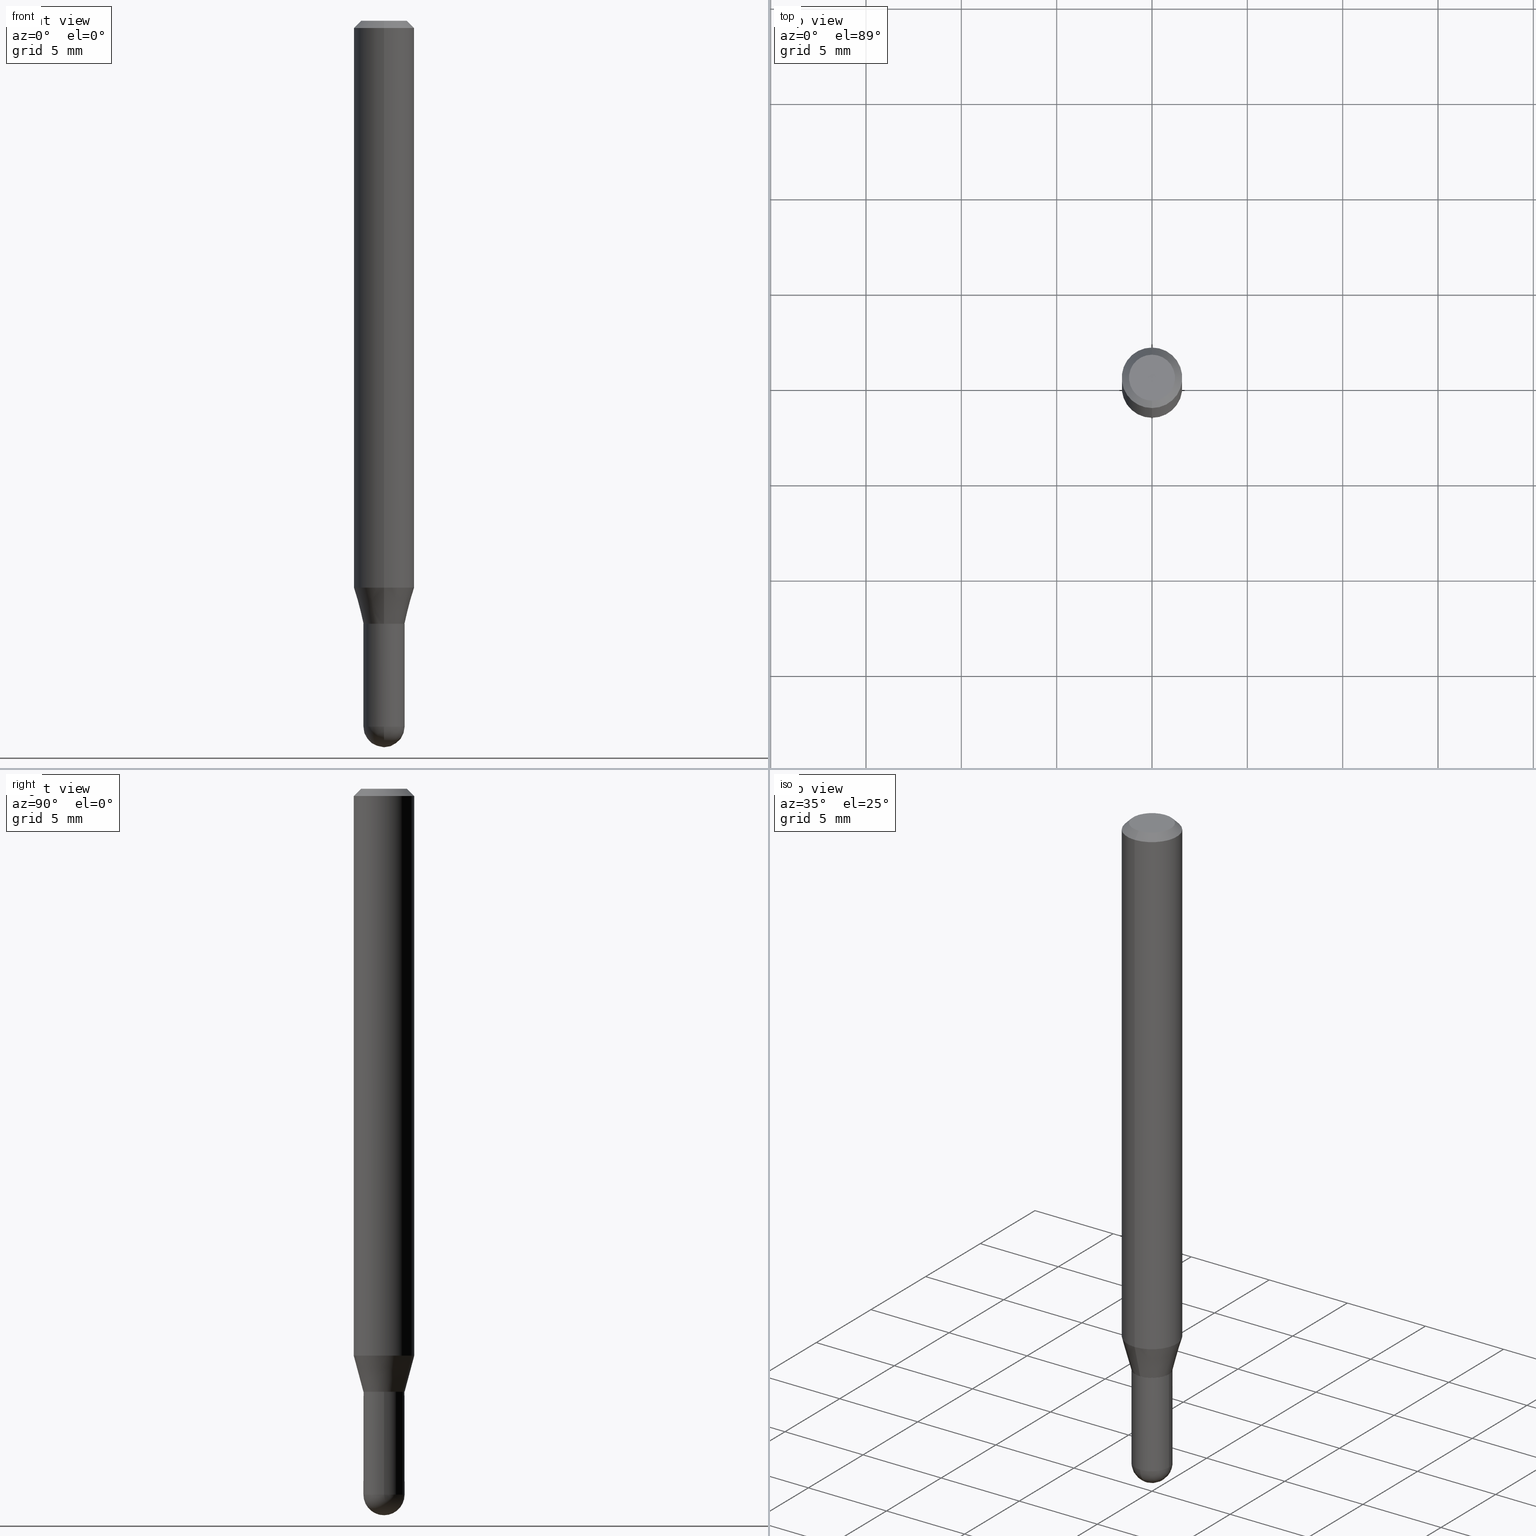
[diagram: canonical four-view strip — front | top / right | iso, engineering-drawing reading convention]
A machine part, canonical four-view strip (front | top / right | iso — engineering-drawing reading convention). The complete STEP part file that produces these views, byte-faithful:
ISO-10303-21;
HEADER;
FILE_DESCRIPTION (( 'STEP AP203' ),
    '1' );
FILE_NAME ('01490.STEP',
    '2024-03-07T21:38:34',
    ( '' ),
    ( '' ),
    'SwSTEP 2.0',
    'SolidWorks 2023',
    '' );
FILE_SCHEMA (( 'CONFIG_CONTROL_DESIGN' ));
ENDSEC;

DATA;
#1 = ORIENTED_EDGE ( 'NONE', *, *, #155, .T. ) ;
#2 = CARTESIAN_POINT ( 'NONE',  ( 2.984279490192724677E-16, 0.04199999999999565192, -1.245000000000000551 ) ) ;
#3 = ORIENTED_EDGE ( 'NONE', *, *, #252, .F. ) ;
#4 = EDGE_CURVE ( 'NONE', #124, #273, #386, .T. ) ;
#5 = DIRECTION ( 'NONE',  ( -2.445559216434552627E-29, 3.491351866220149979E-15, 1.000000000000000000 ) ) ;
#6 = ADVANCED_FACE ( 'NONE', ( #111 ), #74, .F. ) ;
#7 = AXIS2_PLACEMENT_3D ( 'NONE', #50, #5, #61 ) ;
#8 = AXIS2_PLACEMENT_3D ( 'NONE', #58, #95, #172 ) ;
#9 = ORIENTED_EDGE ( 'NONE', *, *, #446, .F. ) ;
#10 = CARTESIAN_POINT ( 'NONE',  ( 2.862182199487982773E-29, -4.086135022407415615E-15, -1.170358983848625023 ) ) ;
#11 = VERTEX_POINT ( 'NONE', #463 ) ;
#12 = CARTESIAN_POINT ( 'NONE',  ( 3.564270785014837509E-29, -5.088834051363884851E-15, -1.457500000000000240 ) ) ;
#13 = ORIENTED_EDGE ( 'NONE', *, *, #159, .F. ) ;
#14 = ORIENTED_EDGE ( 'NONE', *, *, #100, .F. ) ;
#15 = DIRECTION ( 'NONE',  ( -2.445559216434552627E-29, 3.491351866220149979E-15, 1.000000000000000000 ) ) ;
#16 = CALENDAR_DATE ( 2024, 7, 3 ) ;
#17 = DIRECTION ( 'NONE',  ( -2.445468806185136597E-29, 3.491481338843145583E-15, 1.000000000000000000 ) ) ;
#18 = VECTOR ( 'NONE', #268, 39.37007874015748143 ) ;
#19 = VECTOR ( 'NONE', #291, 39.37007874015748143 ) ;
#20 = ORIENTED_EDGE ( 'NONE', *, *, #477, .F. ) ;
#21 = PERSON_AND_ORGANIZATION ( #430, #490 ) ;
#22 = DIRECTION ( 'NONE',  ( -2.445468806185136597E-29, 3.491481338843145583E-15, 1.000000000000000000 ) ) ;
#23 = PERSON_AND_ORGANIZATION ( #430, #490 ) ;
#24 = PRODUCT_DEFINITION_SHAPE ( 'NONE', 'NONE',  #256 ) ;
#25 = CARTESIAN_POINT ( 'NONE',  ( 0.04250000000000000999, -2.967759138016664042E-16, 2.072375129713273202E-30 ) ) ;
#26 = ORIENTED_EDGE ( 'NONE', *, *, #341, .T. ) ;
#27 = DATE_AND_TIME ( #69, #188 ) ;
#28 = CARTESIAN_POINT ( 'NONE',  ( 0.000000000000000000, 0.000000000000000000, 0.000000000000000000 ) ) ;
#29 = DIRECTION ( 'NONE',  ( -6.982962677686266711E-15, -1.000000000000000000, 6.427877632151220009E-15 ) ) ;
#30 = CIRCLE ( 'NONE', #449, 0.04250000000000000999 ) ;
#31 = PERSON_AND_ORGANIZATION_ROLE ( 'creator' ) ;
#32 = CARTESIAN_POINT ( 'NONE',  ( 4.364351673553919652E-16, 0.06249999999999995143, -0.01500000000000022669 ) ) ;
#33 = EDGE_CURVE ( 'NONE', #298, #42, #230, .T. ) ;
#34 = CARTESIAN_POINT ( 'NONE',  ( 0.000000000000000000, 0.000000000000000000, 0.000000000000000000 ) ) ;
#35 = CONICAL_SURFACE ( 'NONE', #320, 0.04199999999999999567, 0.7853981633974739252 ) ;
#36 = CALENDAR_DATE ( 2024, 7, 3 ) ;
#37 = LOCAL_TIME ( 16, 38, 34.00000000000000000, #484 ) ;
#38 = APPROVAL ( #333, 'UNSPECIFIED' ) ;
#39 = VERTEX_POINT ( 'NONE', #385 ) ;
#40 = CARTESIAN_POINT ( 'NONE',  ( 3.044721224461018478E-29, -4.346733073444087600E-15, -1.245000000000000329 ) ) ;
#41 = DIMENSIONAL_EXPONENTS ( 1.000000000000000000, 0.000000000000000000, 0.000000000000000000, 0.000000000000000000, 0.000000000000000000, 0.000000000000000000, 0.000000000000000000 ) ;
#42 = VERTEX_POINT ( 'NONE', #271 ) ;
#43 = CIRCLE ( 'NONE', #228, 0.04250000000000000999 ) ;
#44 = DIRECTION ( 'NONE',  ( -2.445468806185136597E-29, 3.491481338843145583E-15, 1.000000000000000000 ) ) ;
#45 = CIRCLE ( 'NONE', #472, 0.04250000000000009326 ) ;
#46 = ORIENTED_EDGE ( 'NONE', *, *, #242, .F. ) ;
#47 = PERSON_AND_ORGANIZATION_ROLE ( 'design_owner' ) ;
#48 = DIRECTION ( 'NONE',  ( 1.000000000000000000, -6.982962677686273810E-15, 0.000000000000000000 ) ) ;
#49 = EDGE_LOOP ( 'NONE', ( #53, #158 ) ) ;
#50 = CARTESIAN_POINT ( 'NONE',  ( 3.043498444852801766E-29, -4.344987397510978283E-15, -1.244500000000000384 ) ) ;
#51 = ADVANCED_FACE ( 'NONE', ( #348 ), #311, .T. ) ;
#52 = COORDINATED_UNIVERSAL_TIME_OFFSET ( 5, 0, .BEHIND. ) ;
#53 = ORIENTED_EDGE ( 'NONE', *, *, #316, .T. ) ;
#54 = CARTESIAN_POINT ( 'NONE',  ( 3.564270785014837509E-29, -5.088834051363884851E-15, -1.457500000000000240 ) ) ;
#55 = APPROVAL_PERSON_ORGANIZATION ( #226, #91, #461 ) ;
#56 = DIRECTION ( 'NONE',  ( -2.445559216434552627E-29, 3.491351866220149979E-15, 1.000000000000000000 ) ) ;
#57 = EDGE_LOOP ( 'NONE', ( #9, #339 ) ) ;
#58 = CARTESIAN_POINT ( 'NONE',  ( 3.044721224461019599E-29, -4.346733073444088389E-15, -1.245000000000000551 ) ) ;
#59 = DIRECTION ( 'NONE',  ( 1.000000000000000000, 0.000000000000000000, 0.000000000000000000 ) ) ;
#60 = CARTESIAN_POINT ( 'NONE',  ( 0.000000000000000000, 0.000000000000000000, 0.000000000000000000 ) ) ;
#61 = DIRECTION ( 'NONE',  ( -6.982962677686266711E-15, -1.000000000000000000, 6.427877632151220009E-15 ) ) ;
#62 = DIRECTION ( 'NONE',  ( -2.445559216434552627E-29, 3.491351866220149979E-15, 1.000000000000000000 ) ) ;
#63 = CIRCLE ( 'NONE', #345, 0.04199999999999999567 ) ;
#64 = APPROVAL_DATE_TIME ( #27, #144 ) ;
#65 = ADVANCED_FACE ( 'NONE', ( #429 ), #67, .T. ) ;
#66 = DIRECTION ( 'NONE',  ( -2.445559216434552627E-29, 3.491351866220149979E-15, 1.000000000000000000 ) ) ;
#67 = CONICAL_SURFACE ( 'NONE', #441, 0.06250000000000000000, 0.7853981633974483900 ) ;
#68 = AXIS2_PLACEMENT_3D ( 'NONE', #418, #66, #113 ) ;
#69 = CALENDAR_DATE ( 2024, 7, 3 ) ;
#70 = ADVANCED_FACE ( 'NONE', ( #112 ), #173, .T. ) ;
#71 = CARTESIAN_POINT ( 'NONE',  ( -2.967759138016352935E-16, -0.04250000000000427047, -1.245000000000000329 ) ) ;
#72 = DIRECTION ( 'NONE',  ( -2.445559216434552627E-29, 3.491351866220149979E-15, 1.000000000000000000 ) ) ;
#73 = ADVANCED_FACE ( 'NONE', ( #500 ), #120, .T. ) ;
#74 = PLANE ( 'NONE',  #383 ) ;
#75 = DIRECTION ( 'NONE',  ( -2.445559216434552627E-29, 3.491351866220149979E-15, 1.000000000000000000 ) ) ;
#76 = CIRCLE ( 'NONE', #196, 0.04749999999999999362 ) ;
#77 = CARTESIAN_POINT ( 'NONE',  ( 3.043498444852801766E-29, -4.344987397510978283E-15, -1.244500000000000384 ) ) ;
#78 = DIRECTION ( 'NONE',  ( 1.000000000000000000, -6.982962677686265922E-15, 4.883557194083112901E-29 ) ) ;
#79 = VERTEX_POINT ( 'NONE', #347 ) ;
#80 = CARTESIAN_POINT ( 'NONE',  ( -4.287811248607203282E-16, -0.06250000000000005551, -0.01499999999999979128 ) ) ;
#81 = AXIS2_PLACEMENT_3D ( 'NONE', #407, #212, #444 ) ;
#82 = EDGE_CURVE ( 'NONE', #250, #352, #307, .T. ) ;
#83 = ORIENTED_EDGE ( 'NONE', *, *, #341, .F. ) ;
#84 = EDGE_CURVE ( 'NONE', #478, #42, #183, .T. ) ;
#85 = EDGE_LOOP ( 'NONE', ( #241, #114, #171, #464 ) ) ;
#86 = CARTESIAN_POINT ( 'NONE',  ( 3.560636328285825248E-29, -5.094038800260261442E-15, -1.457500000000000240 ) ) ;
#87 = FACE_OUTER_BOUND ( 'NONE', #469, .T. ) ;
#88 = ORIENTED_EDGE ( 'NONE', *, *, #159, .T. ) ;
#89 = CARTESIAN_POINT ( 'NONE',  ( 4.440892098500625669E-16, 0.06250000000000000000, -2.182094916387593737E-16 ) ) ;
#90 = ORIENTED_EDGE ( 'NONE', *, *, #475, .F. ) ;
#91 = APPROVAL ( #110, 'UNSPECIFIED' ) ;
#92 = DIRECTION ( 'NONE',  ( 1.000000000000000000, -6.982962677686273810E-15, 0.000000000000000000 ) ) ;
#93 = EDGE_CURVE ( 'NONE', #39, #281, #505, .T. ) ;
#94 = CIRCLE ( 'NONE', #489, 0.06250000000000000000 ) ;
#95 = DIRECTION ( 'NONE',  ( -2.445559216434552627E-29, 3.491351866220149979E-15, 1.000000000000000000 ) ) ;
#96 = VERTEX_POINT ( 'NONE', #317 ) ;
#97 = DIRECTION ( 'NONE',  ( -2.445559216434552627E-29, 3.491351866220149979E-15, 1.000000000000000000 ) ) ;
#98 = CYLINDRICAL_SURFACE ( 'NONE', #362, 0.06250000000000000000 ) ;
#99 = DIRECTION ( 'NONE',  ( 7.105427357601001070E-15, 1.000000000000000000, 0.000000000000000000 ) ) ;
#100 = EDGE_CURVE ( 'NONE', #124, #250, #425, .T. ) ;
#101 = EDGE_CURVE ( 'NONE', #298, #396, #43, .T. ) ;
#102 = AXIS2_PLACEMENT_3D ( 'NONE', #397, #62, #465 ) ;
#103 = AXIS2_PLACEMENT_3D ( 'NONE', #458, #294, #29 ) ;
#104 = PERSON_AND_ORGANIZATION_ROLE ( 'classification_officer' ) ;
#105 = DIRECTION ( 'NONE',  ( -6.982962677686265922E-15, -1.000000000000000000, 3.483106191921935554E-15 ) ) ;
#106 = FACE_OUTER_BOUND ( 'NONE', #121, .T. ) ;
#107 = DIRECTION ( 'NONE',  ( -2.445468806185136877E-29, 3.491481338843145188E-15, 1.000000000000000000 ) ) ;
#108 = CYLINDRICAL_SURFACE ( 'NONE', #394, 0.04250000000000000999 ) ;
#109 = CIRCLE ( 'NONE', #68, 0.04199999999999999567 ) ;
#110 = APPROVAL_STATUS ( 'not_yet_approved' ) ;
#111 = FACE_OUTER_BOUND ( 'NONE', #57, .T. ) ;
#112 = FACE_OUTER_BOUND ( 'NONE', #416, .T. ) ;
#113 = DIRECTION ( 'NONE',  ( -6.982962677686265922E-15, -1.000000000000000000, 6.504399984914913214E-15 ) ) ;
#114 = ORIENTED_EDGE ( 'NONE', *, *, #93, .T. ) ;
#115 = FACE_OUTER_BOUND ( 'NONE', #213, .T. ) ;
#116 = DATE_AND_TIME ( #36, #337 ) ;
#117 = DIRECTION ( 'NONE',  ( -2.445468806185136597E-29, 3.491481338843145583E-15, 1.000000000000000000 ) ) ;
#118 = AXIS2_PLACEMENT_3D ( 'NONE', #34, #117, #187 ) ;
#119 = CC_DESIGN_APPROVAL ( #91, ( #428 ) ) ;
#120 = SPHERICAL_SURFACE ( 'NONE', #470, 0.04250000000000009326 ) ;
#121 = EDGE_LOOP ( 'NONE', ( #314, #509, #132, #381 ) ) ;
#122 = CARTESIAN_POINT ( 'NONE',  ( 2.168347630426420581E-46, -3.095596498023266248E-32, -8.866469541423388147E-18 ) ) ;
#123 = DIRECTION ( 'NONE',  ( -1.807323732225379049E-15, -0.2588190451025252359, 0.9659258262890670910 ) ) ;
#124 = VERTEX_POINT ( 'NONE', #198 ) ;
#125 = FACE_OUTER_BOUND ( 'NONE', #459, .T. ) ;
#126 = ORIENTED_EDGE ( 'NONE', *, *, #216, .F. ) ;
#127 = AXIS2_PLACEMENT_3D ( 'NONE', #445, #253, #331 ) ;
#128 = PRODUCT_DEFINITION_FORMATION_WITH_SPECIFIED_SOURCE ( 'ANY', '', #367, .NOT_KNOWN. ) ;
#129 = APPROVAL_ROLE ( '' ) ;
#130 = DIRECTION ( 'NONE',  ( 6.982962677686265922E-15, 1.000000000000000000, -3.491351866220149979E-15 ) ) ;
#131 = EDGE_LOOP ( 'NONE', ( #443, #14, #436, #284 ) ) ;
#132 = ORIENTED_EDGE ( 'NONE', *, *, #225, .T. ) ;
#133 = CARTESIAN_POINT ( 'NONE',  ( 3.044721224461018478E-29, -4.346733073444087600E-15, -1.245000000000000329 ) ) ;
#134 = ORIENTED_EDGE ( 'NONE', *, *, #346, .T. ) ;
#135 = ORIENTED_EDGE ( 'NONE', *, *, #101, .F. ) ;
#136 = DIRECTION ( 'NONE',  ( -2.445559216434552627E-29, 3.491351866220149979E-15, 1.000000000000000000 ) ) ;
#137 = ORIENTED_EDGE ( 'NONE', *, *, #100, .T. ) ;
#138 = MECHANICAL_CONTEXT ( 'NONE', #151, 'mechanical' ) ;
#139 = AXIS2_PLACEMENT_3D ( 'NONE', #150, #267, #424 ) ;
#140 = ORIENTED_EDGE ( 'NONE', *, *, #194, .T. ) ;
#141 = FACE_OUTER_BOUND ( 'NONE', #195, .T. ) ;
#142 = CARTESIAN_POINT ( 'NONE',  ( -4.364351673553628267E-16, -0.06250000000000405231, -1.170358983848624801 ) ) ;
#143 = ORIENTED_EDGE ( 'NONE', *, *, #4, .F. ) ;
#144 = APPROVAL ( #162, 'UNSPECIFIED' ) ;
#145 = EDGE_CURVE ( 'NONE', #124, #434, #243, .T. ) ;
#146 = DIRECTION ( 'NONE',  ( -6.982962677686265922E-15, -1.000000000000000000, 6.427877632151193188E-15 ) ) ;
#147 = CARTESIAN_POINT ( 'NONE',  ( -4.364351673553916201E-16, -0.06250000000000000000, 2.182094916387593737E-16 ) ) ;
#148 = CC_DESIGN_APPROVAL ( #144, ( #256 ) ) ;
#149 = DIRECTION ( 'NONE',  ( -2.445559216434552627E-29, 3.491351866220149979E-15, 1.000000000000000000 ) ) ;
#150 = CARTESIAN_POINT ( 'NONE',  ( 3.668338824651831148E-31, -5.237027799330228519E-17, -0.01500000000000000812 ) ) ;
#151 = APPLICATION_CONTEXT ( 'configuration controlled 3d designs of mechanical parts and assemblies' ) ;
#152 = CIRCLE ( 'NONE', #432, 0.04249999999999991979 ) ;
#153 = VERTEX_POINT ( 'NONE', #353 ) ;
#154 = CC_DESIGN_DATE_AND_TIME_ASSIGNMENT ( #185, #391, ( #428 ) ) ;
#155 = EDGE_CURVE ( 'NONE', #153, #273, #94, .T. ) ;
#156 = CARTESIAN_POINT ( 'NONE',  ( 3.560636328285825248E-29, -5.094038800260261442E-15, -1.457500000000000240 ) ) ;
#157 = ADVANCED_FACE ( 'NONE', ( #87 ), #358, .F. ) ;
#158 = ORIENTED_EDGE ( 'NONE', *, *, #318, .T. ) ;
#159 = EDGE_CURVE ( 'NONE', #96, #298, #344, .T. ) ;
#160 = EDGE_LOOP ( 'NONE', ( #499, #457, #168, #20 ) ) ;
#161 = CARTESIAN_POINT ( 'NONE',  ( -0.04250000000000000999, -4.415883496413759874E-15, -1.457500000000000240 ) ) ;
#162 = APPROVAL_STATUS ( 'not_yet_approved' ) ;
#163 = CARTESIAN_POINT ( 'NONE',  ( 0.04249999999999999611, -4.643670180661383298E-15, -1.245000000000000329 ) ) ;
#164 = ORIENTED_EDGE ( 'NONE', *, *, #395, .T. ) ;
#165 = VECTOR ( 'NONE', #390, 39.37007874015748143 ) ;
#166 = VECTOR ( 'NONE', #107, 39.37007874015748143 ) ;
#167 = CARTESIAN_POINT ( 'NONE',  ( 0.000000000000000000, 0.000000000000000000, 0.000000000000000000 ) ) ;
#168 = ORIENTED_EDGE ( 'NONE', *, *, #395, .F. ) ;
#169 = FACE_OUTER_BOUND ( 'NONE', #49, .T. ) ;
#170 = ORIENTED_EDGE ( 'NONE', *, *, #452, .T. ) ;
#171 = ORIENTED_EDGE ( 'NONE', *, *, #302, .T. ) ;
#172 = DIRECTION ( 'NONE',  ( -6.982962677686266711E-15, -1.000000000000000000, 6.427877632151220009E-15 ) ) ;
#173 = CONICAL_SURFACE ( 'NONE', #360, 0.04199999999999999567, 0.7853981633974739252 ) ;
#174 = AXIS2_PLACEMENT_3D ( 'NONE', #201, #17, #48 ) ;
#175 = CARTESIAN_POINT ( 'NONE',  ( 3.002043058586724733E-16, 0.04199999999999565192, -1.245000000000000551 ) ) ;
#176 = APPLICATION_CONTEXT ( 'configuration controlled 3d designs of mechanical parts and assemblies' ) ;
#177 = CARTESIAN_POINT ( 'NONE',  ( 3.840629472727447874E-16, 0.04749999999999999362, -1.747056831868805136E-16 ) ) ;
#178 = ORIENTED_EDGE ( 'NONE', *, *, #446, .T. ) ;
#179 = DIRECTION ( 'NONE',  ( 1.000000000000000000, -6.982962677686266711E-15, 4.876176775795935793E-29 ) ) ;
#180 = LENGTH_MEASURE_WITH_UNIT ( LENGTH_MEASURE( 0.02539999999999999897 ), #375 );
#181 = LINE ( 'NONE', #147, #277 ) ;
#182 = CC_DESIGN_PERSON_AND_ORGANIZATION_ASSIGNMENT ( #23, #104, ( #428 ) ) ;
#183 = CIRCLE ( 'NONE', #206, 0.04249999999999999611 ) ;
#184 = DIRECTION ( 'NONE',  ( 4.937700262164548042E-15, 0.7071067811865451302, -0.7071067811865499042 ) ) ;
#185 = DATE_AND_TIME ( #420, #209 ) ;
#186 = DIRECTION ( 'NONE',  ( 1.000000000000000000, -6.982962677686265922E-15, 4.883557194083112901E-29 ) ) ;
#187 = DIRECTION ( 'NONE',  ( 1.000000000000000000, -6.982962677686266711E-15, 4.876176775795935793E-29 ) ) ;
#188 = LOCAL_TIME ( 16, 38, 34.00000000000000000, #52 ) ;
#189 = DIRECTION ( 'NONE',  ( -6.982962677686265922E-15, -1.000000000000000000, 6.427877632151193188E-15 ) ) ;
#190 = DIRECTION ( 'NONE',  ( -2.445559216434552627E-29, 3.491351866220149979E-15, 1.000000000000000000 ) ) ;
#191 = CARTESIAN_POINT ( 'NONE',  ( 3.044608663700495534E-29, -4.346894266859716647E-15, -1.245000000000000329 ) ) ;
#192 = APPROVAL_DATE_TIME ( #116, #91 ) ;
#193 = DIRECTION ( 'NONE',  ( 6.982962677686265922E-15, 1.000000000000000000, -3.483106191921935554E-15 ) ) ;
#194 = EDGE_CURVE ( 'NONE', #245, #312, #366, .T. ) ;
#195 = EDGE_LOOP ( 'NONE', ( #90, #1, #26, #406 ) ) ;
#196 = AXIS2_PLACEMENT_3D ( 'NONE', #197, #507, #467 ) ;
#197 = CARTESIAN_POINT ( 'NONE',  ( 2.168347630426420581E-46, -3.095596498023266248E-32, -8.866469541423388147E-18 ) ) ;
#198 = CARTESIAN_POINT ( 'NONE',  ( -2.967759138016352935E-16, -0.04250000000000427047, -1.245000000000000329 ) ) ;
#199 = ORIENTED_EDGE ( 'NONE', *, *, #302, .F. ) ;
#200 = FACE_OUTER_BOUND ( 'NONE', #506, .T. ) ;
#201 = CARTESIAN_POINT ( 'NONE',  ( 3.564270785014837509E-29, -5.088834051363884851E-15, -1.457500000000000240 ) ) ;
#202 = ORIENTED_EDGE ( 'NONE', *, *, #33, .F. ) ;
#203 = DIRECTION ( 'NONE',  ( -2.445559216434552627E-29, 3.491351866220149979E-15, 1.000000000000000000 ) ) ;
#204 = PERSON_AND_ORGANIZATION ( #430, #490 ) ;
#205 = ORIENTED_EDGE ( 'NONE', *, *, #155, .F. ) ;
#206 = AXIS2_PLACEMENT_3D ( 'NONE', #191, #501, #350 ) ;
#207 = CIRCLE ( 'NONE', #263, 0.06250000000000000000 ) ;
#208 = CARTESIAN_POINT ( 'NONE',  ( 3.564270785014837509E-29, -5.088834051363884851E-15, -1.457500000000000240 ) ) ;
#209 = LOCAL_TIME ( 16, 38, 34.00000000000000000, #495 ) ;
#210 = CARTESIAN_POINT ( 'NONE',  ( -2.932844324627926808E-16, -0.04200000000000434636, -1.244999999999999885 ) ) ;
#211 = ORIENTED_EDGE ( 'NONE', *, *, #389, .T. ) ;
#212 = DIRECTION ( 'NONE',  ( -2.445559216434552627E-29, 3.491351866220149979E-15, 1.000000000000000000 ) ) ;
#213 = EDGE_LOOP ( 'NONE', ( #236, #369, #140, #134 ) ) ;
#214 = MANIFOLD_SOLID_BREP ( 'Body-Move/Copy2[1]', #448 ) ;
#215 = DIRECTION ( 'NONE',  ( -4.937700262164674260E-15, -0.7071067811865632269, 0.7071067811865319186 ) ) ;
#216 = EDGE_CURVE ( 'NONE', #273, #153, #373, .T. ) ;
#217 = ADVANCED_FACE ( 'NONE', ( #115 ), #288, .T. ) ;
#218 = COORDINATED_UNIVERSAL_TIME_OFFSET ( 5, 0, .BEHIND. ) ;
#219 = CIRCLE ( 'NONE', #494, 0.04250000000000009326 ) ;
#220 = MANIFOLD_SOLID_BREP ( 'Body-Move/Copy2[2]', #456 ) ;
#221 = PERSON_AND_ORGANIZATION ( #430, #490 ) ;
#222 = VECTOR ( 'NONE', #479, 39.37007874015748143 ) ;
#223 = CIRCLE ( 'NONE', #8, 0.04249999999999991979 ) ;
#224 = DIRECTION ( 'NONE',  ( -6.982962677686265922E-15, -1.000000000000000000, 3.491351866220149979E-15 ) ) ;
#225 = EDGE_CURVE ( 'NONE', #352, #434, #152, .T. ) ;
#226 = PERSON_AND_ORGANIZATION ( #430, #490 ) ;
#227 = CARTESIAN_POINT ( 'NONE',  ( -0.04250000000000000999, 3.019806626980426500E-16, -2.090547413358335560E-30 ) ) ;
#228 = AXIS2_PLACEMENT_3D ( 'NONE', #208, #44, #233 ) ;
#229 = CONICAL_SURFACE ( 'NONE', #81, 0.04249999999999991979, 0.2617993877991575125 ) ;
#230 = LINE ( 'NONE', #227, #18 ) ;
#231 = EDGE_LOOP ( 'NONE', ( #46, #306, #135, #13 ) ) ;
#232 = DIRECTION ( 'NONE',  ( -2.445559216434552627E-29, 3.491351866220149979E-15, 1.000000000000000000 ) ) ;
#233 = DIRECTION ( 'NONE',  ( 1.000000000000000000, -6.982962677686273810E-15, 0.000000000000000000 ) ) ;
#234 = LINE ( 'NONE', #404, #388 ) ;
#235 = AXIS2_PLACEMENT_3D ( 'NONE', #474, #282, #403 ) ;
#236 = ORIENTED_EDGE ( 'NONE', *, *, #93, .F. ) ;
#237 = CONICAL_SURFACE ( 'NONE', #103, 0.04249999999999991979, 0.2617993877991575125 ) ;
#238 = DIRECTION ( 'NONE',  ( 1.000000000000000000, -7.105427357601001070E-15, 4.926315508542082329E-29 ) ) ;
#239 = EDGE_LOOP ( 'NONE', ( #137, #401, #126, #143 ) ) ;
#240 = DIRECTION ( 'NONE',  ( -6.982962677686266711E-15, -1.000000000000000000, 6.427877632151220009E-15 ) ) ;
#241 = ORIENTED_EDGE ( 'NONE', *, *, #318, .F. ) ;
#242 = EDGE_CURVE ( 'NONE', #11, #96, #219, .T. ) ;
#243 = LINE ( 'NONE', #278, #351 ) ;
#244 = DIRECTION ( 'NONE',  ( 1.000000000000000000, -6.982962677686273810E-15, 0.000000000000000000 ) ) ;
#245 = VERTEX_POINT ( 'NONE', #177 ) ;
#246 = VECTOR ( 'NONE', #184, 39.37007874015748143 ) ;
#247 = AXIS2_PLACEMENT_3D ( 'NONE', #60, #15, #400 ) ;
#248 =( NAMED_UNIT ( * ) SI_UNIT ( $, .STERADIAN. ) SOLID_ANGLE_UNIT ( ) );
#249 = FACE_OUTER_BOUND ( 'NONE', #239, .T. ) ;
#250 = VERTEX_POINT ( 'NONE', #411 ) ;
#251 = CARTESIAN_POINT ( 'NONE',  ( -2.932844324627926808E-16, -0.04200000000000434636, -1.244999999999999885 ) ) ;
#252 = EDGE_CURVE ( 'NONE', #434, #352, #275, .T. ) ;
#253 = DIRECTION ( 'NONE',  ( -2.445468806185136597E-29, 3.491481338843145583E-15, 1.000000000000000000 ) ) ;
#254 = CIRCLE ( 'NONE', #102, 0.06250000000000000000 ) ;
#255 = APPROVAL_PERSON_ORGANIZATION ( #221, #38, #492 ) ;
#256 = PRODUCT_DEFINITION ( 'UNKNOWN', '', #128, #414 ) ;
#257 = ORIENTED_EDGE ( 'NONE', *, *, #485, .T. ) ;
#258 = DIRECTION ( 'NONE',  ( -6.982962677686266711E-15, -1.000000000000000000, 3.491351866220150374E-15 ) ) ;
#259 = CARTESIAN_POINT ( 'NONE',  ( 0.000000000000000000, 0.000000000000000000, 0.000000000000000000 ) ) ;
#260 = PERSON_AND_ORGANIZATION ( #430, #490 ) ;
#261 = VECTOR ( 'NONE', #123, 39.37007874015748854 ) ;
#262 = CYLINDRICAL_SURFACE ( 'NONE', #289, 0.04249999999999991979 ) ;
#263 = AXIS2_PLACEMENT_3D ( 'NONE', #301, #343, #105 ) ;
#264 = DIRECTION ( 'NONE',  ( -1.000000000000000000, 6.982962677686265922E-15, -4.883557194083112340E-29 ) ) ;
#265 = DIRECTION ( 'NONE',  ( -2.445559216434552347E-29, 3.491351866220149979E-15, 1.000000000000000000 ) ) ;
#266 = CARTESIAN_POINT ( 'NONE',  ( 3.019806626980733170E-16, 0.04249999999999570788, -1.244500000000000606 ) ) ;
#267 = DIRECTION ( 'NONE',  ( 2.445559216434552627E-29, -3.491351866220149979E-15, -1.000000000000000000 ) ) ;
#268 = DIRECTION ( 'NONE',  ( -2.445468806185136877E-29, 3.491481338843145188E-15, 1.000000000000000000 ) ) ;
#269 = AXIS2_PLACEMENT_3D ( 'NONE', #384, #342, #460 ) ;
#270 = APPROVAL_PERSON_ORGANIZATION ( #204, #144, #129 ) ;
#271 = CARTESIAN_POINT ( 'NONE',  ( -0.04249999999999999611, -4.415883496413758296E-15, -1.245000000000000329 ) ) ;
#272 = ORIENTED_EDGE ( 'NONE', *, *, #33, .T. ) ;
#273 = VERTEX_POINT ( 'NONE', #142 ) ;
#274 = FACE_OUTER_BOUND ( 'NONE', #160, .T. ) ;
#275 = CIRCLE ( 'NONE', #7, 0.04249999999999991979 ) ;
#276 = ORIENTED_EDGE ( 'NONE', *, *, #84, .T. ) ;
#277 = VECTOR ( 'NONE', #376, 39.37007874015748143 ) ;
#278 = CARTESIAN_POINT ( 'NONE',  ( -2.967759138016657633E-16, -0.04249999999999991979, 1.483824543143561049E-16 ) ) ;
#279 = CC_DESIGN_DATE_AND_TIME_ASSIGNMENT ( #295, #338, ( #256 ) ) ;
#280 = EDGE_CURVE ( 'NONE', #42, #478, #336, .T. ) ;
#281 = VERTEX_POINT ( 'NONE', #309 ) ;
#282 = DIRECTION ( 'NONE',  ( 2.438088387897960049E-29, -3.491481338843145188E-15, -1.000000000000000000 ) ) ;
#283 = DIRECTION ( 'NONE',  ( -6.982962677686265922E-15, -1.000000000000000000, 6.504399984914913214E-15 ) ) ;
#284 = ORIENTED_EDGE ( 'NONE', *, *, #252, .T. ) ;
#285 = DIRECTION ( 'NONE',  ( -2.445468806185136597E-29, 3.491481338843145583E-15, 1.000000000000000000 ) ) ;
#286 =( NAMED_UNIT ( * ) PLANE_ANGLE_UNIT ( ) SI_UNIT ( $, .RADIAN. ) );
#287 = CARTESIAN_POINT ( 'NONE',  ( -2.967759138016344061E-16, -0.04250000000000413863, -1.244500000000000162 ) ) ;
#288 = CONICAL_SURFACE ( 'NONE', #139, 0.06250000000000000000, 0.7853981633974483900 ) ;
#289 = AXIS2_PLACEMENT_3D ( 'NONE', #28, #72, #258 ) ;
#290 = ADVANCED_FACE ( 'NONE', ( #125 ), #35, .T. ) ;
#291 = DIRECTION ( 'NONE',  ( 5.024295867788190974E-15, 0.7071067811865681119, 0.7071067811865270336 ) ) ;
#292 = FACE_OUTER_BOUND ( 'NONE', #431, .T. ) ;
#293 = DATE_AND_TIME ( #374, #37 ) ;
#294 = DIRECTION ( 'NONE',  ( -2.445559216434552627E-29, 3.491351866220149979E-15, 1.000000000000000000 ) ) ;
#295 = DATE_AND_TIME ( #16, #496 ) ;
#296 = CIRCLE ( 'NONE', #387, 0.04749999999999999362 ) ;
#297 = AXIS2_PLACEMENT_3D ( 'NONE', #380, #186, #146 ) ;
#298 = VERTEX_POINT ( 'NONE', #161 ) ;
#299 = ADVANCED_BREP_SHAPE_REPRESENTATION ( '01490', ( #214, #220, #442 ), #433 ) ;
#300 = PERSON_AND_ORGANIZATION_ROLE ( 'creator' ) ;
#301 = CARTESIAN_POINT ( 'NONE',  ( 3.668338824651831148E-31, -5.237027799330228519E-17, -0.01500000000000000812 ) ) ;
#302 = EDGE_CURVE ( 'NONE', #281, #312, #254, .T. ) ;
#303 = AXIS2_PLACEMENT_3D ( 'NONE', #54, #285, #92 ) ;
#304 = VECTOR ( 'NONE', #97, 39.37007874015748143 ) ;
#305 = DIRECTION ( 'NONE',  ( 2.445559216434552627E-29, -3.491351866220149979E-15, -1.000000000000000000 ) ) ;
#306 = ORIENTED_EDGE ( 'NONE', *, *, #379, .T. ) ;
#307 = LINE ( 'NONE', #462, #165 ) ;
#308 = VECTOR ( 'NONE', #215, 39.37007874015748143 ) ;
#309 = CARTESIAN_POINT ( 'NONE',  ( -4.364351673553912750E-16, -0.06250000000000005551, -0.01499999999999979128 ) ) ;
#310 = SHAPE_DEFINITION_REPRESENTATION ( #24, #299 ) ;
#311 = CYLINDRICAL_SURFACE ( 'NONE', #118, 0.04250000000000000999 ) ;
#312 = VERTEX_POINT ( 'NONE', #313 ) ;
#313 = CARTESIAN_POINT ( 'NONE',  ( 4.440892098500914096E-16, 0.06249999999999995143, -0.01500000000000022669 ) ) ;
#314 = ORIENTED_EDGE ( 'NONE', *, *, #452, .F. ) ;
#315 = ORIENTED_EDGE ( 'NONE', *, *, #280, .F. ) ;
#316 = EDGE_CURVE ( 'NONE', #245, #39, #296, .T. ) ;
#317 = CARTESIAN_POINT ( 'NONE',  ( 3.019806626980785432E-16, 0.04249999999999495154, -1.457500000000000462 ) ) ;
#318 = EDGE_CURVE ( 'NONE', #39, #245, #76, .T. ) ;
#319 = FACE_OUTER_BOUND ( 'NONE', #131, .T. ) ;
#320 = AXIS2_PLACEMENT_3D ( 'NONE', #409, #447, #510 ) ;
#321 = ORIENTED_EDGE ( 'NONE', *, *, #475, .T. ) ;
#322 = CC_DESIGN_APPROVAL ( #38, ( #128 ) ) ;
#323 = EDGE_LOOP ( 'NONE', ( #88, #272, #372, #440, #164 ) ) ;
#324 = CARTESIAN_POINT ( 'NONE',  ( 3.044721224461019599E-29, -4.346733073444088389E-15, -1.245000000000000551 ) ) ;
#325 = ORIENTED_EDGE ( 'NONE', *, *, #423, .T. ) ;
#326 = UNCERTAINTY_MEASURE_WITH_UNIT (LENGTH_MEASURE( 1.000000000000000082E-05 ), #451, 'distance_accuracy_value', 'NONE');
#327 = DIRECTION ( 'NONE',  ( -6.982962677686266711E-15, -1.000000000000000000, 6.427877632151220009E-15 ) ) ;
#328 = LINE ( 'NONE', #251, #308 ) ;
#329 = CIRCLE ( 'NONE', #174, 0.04250000000000000999 ) ;
#330 = CYLINDRICAL_SURFACE ( 'NONE', #247, 0.04249999999999991979 ) ;
#331 = DIRECTION ( 'NONE',  ( 1.000000000000000000, -6.982962677686265133E-15, 0.000000000000000000 ) ) ;
#332 = CC_DESIGN_PERSON_AND_ORGANIZATION_ASSIGNMENT ( #21, #453, ( #128 ) ) ;
#333 = APPROVAL_STATUS ( 'not_yet_approved' ) ;
#334 = ADVANCED_FACE ( 'NONE', ( #274 ), #355, .T. ) ;
#335 = ORIENTED_EDGE ( 'NONE', *, *, #280, .T. ) ;
#336 = CIRCLE ( 'NONE', #127, 0.04249999999999999611 ) ;
#337 = LOCAL_TIME ( 16, 38, 34.00000000000000000, #419 ) ;
#338 = DATE_TIME_ROLE ( 'creation_date' ) ;
#339 = ORIENTED_EDGE ( 'NONE', *, *, #389, .F. ) ;
#340 = ADVANCED_FACE ( 'NONE', ( #200 ), #237, .T. ) ;
#341 = EDGE_CURVE ( 'NONE', #273, #281, #181, .T. ) ;
#342 = DIRECTION ( 'NONE',  ( -2.445559216434552627E-29, 3.491351866220149979E-15, 1.000000000000000000 ) ) ;
#343 = DIRECTION ( 'NONE',  ( -2.445559216434552627E-29, 3.491351866220149979E-15, 1.000000000000000000 ) ) ;
#344 = CIRCLE ( 'NONE', #303, 0.04250000000000000999 ) ;
#345 = AXIS2_PLACEMENT_3D ( 'NONE', #133, #56, #283 ) ;
#346 = EDGE_CURVE ( 'NONE', #312, #281, #207, .T. ) ;
#347 = CARTESIAN_POINT ( 'NONE',  ( 0.04250000000000000999, -5.014640072913468189E-15, -1.457500000000000240 ) ) ;
#348 = FACE_OUTER_BOUND ( 'NONE', #365, .T. ) ;
#349 = ORIENTED_EDGE ( 'NONE', *, *, #485, .F. ) ;
#350 = DIRECTION ( 'NONE',  ( 1.000000000000000000, -6.982962677686265133E-15, 0.000000000000000000 ) ) ;
#351 = VECTOR ( 'NONE', #203, 39.37007874015748143 ) ;
#352 = VERTEX_POINT ( 'NONE', #266 ) ;
#353 = CARTESIAN_POINT ( 'NONE',  ( 4.440892098500914096E-16, 0.06249999999999594075, -1.170358983848625467 ) ) ;
#354 = ORIENTED_EDGE ( 'NONE', *, *, #4, .T. ) ;
#355 = SPHERICAL_SURFACE ( 'NONE', #297, 0.04250000000000009326 ) ;
#356 = CARTESIAN_POINT ( 'NONE',  ( -2.967759138016310534E-16, -0.04250000000000514477, -1.457500000000000018 ) ) ;
#357 = ORIENTED_EDGE ( 'NONE', *, *, #503, .T. ) ;
#358 = PLANE ( 'NONE',  #235 ) ;
#359 = LINE ( 'NONE', #2, #19 ) ;
#360 = AXIS2_PLACEMENT_3D ( 'NONE', #421, #75, #426 ) ;
#361 = ORIENTED_EDGE ( 'NONE', *, *, #423, .F. ) ;
#362 = AXIS2_PLACEMENT_3D ( 'NONE', #491, #149, #382 ) ;
#363 = ADVANCED_FACE ( 'NONE', ( #455 ), #108, .T. ) ;
#364 = DIRECTION ( 'NONE',  ( -6.982962677686265922E-15, -1.000000000000000000, 3.491351866220149979E-15 ) ) ;
#365 = EDGE_LOOP ( 'NONE', ( #202, #439, #466, #357, #315 ) ) ;
#366 = LINE ( 'NONE', #32, #246 ) ;
#367 = PRODUCT ( '01490', '01490', '', ( #138 ) ) ;
#368 = DIRECTION ( 'NONE',  ( 2.445559216434552347E-29, -3.491351866220149979E-15, -1.000000000000000000 ) ) ;
#369 = ORIENTED_EDGE ( 'NONE', *, *, #316, .F. ) ;
#370 = DIRECTION ( 'NONE',  ( 0.000000000000000000, 0.000000000000000000, 1.000000000000000000 ) ) ;
#371 = DIRECTION ( 'NONE',  ( 1.839019923739649619E-15, 0.2588190451025318972, 0.9659258262890650926 ) ) ;
#372 = ORIENTED_EDGE ( 'NONE', *, *, #84, .F. ) ;
#373 = CIRCLE ( 'NONE', #269, 0.06250000000000000000 ) ;
#374 = CALENDAR_DATE ( 2024, 7, 3 ) ;
#375 =( LENGTH_UNIT ( ) NAMED_UNIT ( * ) SI_UNIT ( $, .METRE. ) );
#376 = DIRECTION ( 'NONE',  ( -2.445559216434552627E-29, 3.491351866220149979E-15, 1.000000000000000000 ) ) ;
#377 = CC_DESIGN_PERSON_AND_ORGANIZATION_ASSIGNMENT ( #399, #47, ( #367 ) ) ;
#378 = APPROVAL_DATE_TIME ( #293, #38 ) ;
#379 = EDGE_CURVE ( 'NONE', #11, #396, #45, .T. ) ;
#380 = CARTESIAN_POINT ( 'NONE',  ( 3.560636328285825248E-29, -5.094038800260261442E-15, -1.457500000000000240 ) ) ;
#381 = ORIENTED_EDGE ( 'NONE', *, *, #145, .F. ) ;
#382 = DIRECTION ( 'NONE',  ( -6.982962677686265922E-15, -1.000000000000000000, 3.491351866220149979E-15 ) ) ;
#383 = AXIS2_PLACEMENT_3D ( 'NONE', #40, #265, #224 ) ;
#384 = CARTESIAN_POINT ( 'NONE',  ( 2.862182199487982773E-29, -4.086135022407415615E-15, -1.170358983848625023 ) ) ;
#385 = CARTESIAN_POINT ( 'NONE',  ( -3.773273898774340269E-16, -0.04749999999999999362, 1.569727441040337127E-16 ) ) ;
#386 = LINE ( 'NONE', #71, #261 ) ;
#387 = AXIS2_PLACEMENT_3D ( 'NONE', #122, #232, #392 ) ;
#388 = VECTOR ( 'NONE', #371, 39.37007874015748854 ) ;
#389 = EDGE_CURVE ( 'NONE', #398, #473, #109, .T. ) ;
#390 = DIRECTION ( 'NONE',  ( -2.445559216434552627E-29, 3.491351866220149979E-15, 1.000000000000000000 ) ) ;
#391 = DATE_TIME_ROLE ( 'classification_date' ) ;
#392 = DIRECTION ( 'NONE',  ( -6.982962677686266711E-15, -1.000000000000000000, 3.491351866220150374E-15 ) ) ;
#393 = EDGE_CURVE ( 'NONE', #250, #153, #234, .T. ) ;
#394 = AXIS2_PLACEMENT_3D ( 'NONE', #259, #22, #179 ) ;
#395 = EDGE_CURVE ( 'NONE', #79, #96, #329, .T. ) ;
#396 = VERTEX_POINT ( 'NONE', #356 ) ;
#397 = CARTESIAN_POINT ( 'NONE',  ( 3.668338824651831148E-31, -5.237027799330228519E-17, -0.01500000000000000812 ) ) ;
#398 = VERTEX_POINT ( 'NONE', #175 ) ;
#399 = PERSON_AND_ORGANIZATION ( #430, #490 ) ;
#400 = DIRECTION ( 'NONE',  ( -6.982962677686266711E-15, -1.000000000000000000, 3.491351866220150374E-15 ) ) ;
#401 = ORIENTED_EDGE ( 'NONE', *, *, #393, .T. ) ;
#402 = CC_DESIGN_PERSON_AND_ORGANIZATION_ASSIGNMENT ( #260, #31, ( #256 ) ) ;
#403 = DIRECTION ( 'NONE',  ( -1.000000000000000000, 6.982962677686265922E-15, -4.876176775795935793E-29 ) ) ;
#404 = CARTESIAN_POINT ( 'NONE',  ( 3.019806626980724295E-16, 0.04249999999999557604, -1.245000000000000773 ) ) ;
#405 = CC_DESIGN_SECURITY_CLASSIFICATION ( #428, ( #128 ) ) ;
#406 = ORIENTED_EDGE ( 'NONE', *, *, #346, .F. ) ;
#407 = CARTESIAN_POINT ( 'NONE',  ( 3.044721224461019599E-29, -4.346733073444088389E-15, -1.245000000000000551 ) ) ;
#408 = CARTESIAN_POINT ( 'NONE',  ( 0.000000000000000000, 0.000000000000000000, 0.000000000000000000 ) ) ;
#409 = CARTESIAN_POINT ( 'NONE',  ( 3.044721224461018478E-29, -4.346733073444087600E-15, -1.245000000000000329 ) ) ;
#410 = ADVANCED_FACE ( 'NONE', ( #141 ), #480, .T. ) ;
#411 = CARTESIAN_POINT ( 'NONE',  ( 3.730349362740818209E-16, 0.04249999999999557604, -1.245000000000000773 ) ) ;
#412 = ADVANCED_FACE ( 'NONE', ( #169 ), #476, .F. ) ;
#413 = AXIS2_PLACEMENT_3D ( 'NONE', #471, #368, #130 ) ;
#414 = DESIGN_CONTEXT ( 'detailed design', #176, 'design' ) ;
#415 = CARTESIAN_POINT ( 'NONE',  ( 3.560636328285825248E-29, -5.094038800260261442E-15, -1.457500000000000240 ) ) ;
#416 = EDGE_LOOP ( 'NONE', ( #361, #211, #257, #508 ) ) ;
#417 = ADVANCED_FACE ( 'NONE', ( #319 ), #330, .F. ) ;
#418 = CARTESIAN_POINT ( 'NONE',  ( 3.044721224461018478E-29, -4.346733073444087600E-15, -1.245000000000000329 ) ) ;
#419 = COORDINATED_UNIVERSAL_TIME_OFFSET ( 5, 0, .BEHIND. ) ;
#420 = CALENDAR_DATE ( 2024, 7, 3 ) ;
#421 = CARTESIAN_POINT ( 'NONE',  ( 3.044721224461018478E-29, -4.346733073444087600E-15, -1.245000000000000329 ) ) ;
#422 = CC_DESIGN_PERSON_AND_ORGANIZATION_ASSIGNMENT ( #450, #300, ( #128 ) ) ;
#423 = EDGE_CURVE ( 'NONE', #398, #352, #359, .T. ) ;
#424 = DIRECTION ( 'NONE',  ( 6.982962677686265922E-15, 1.000000000000000000, -3.483106191921935554E-15 ) ) ;
#425 = CIRCLE ( 'NONE', #504, 0.04249999999999991979 ) ;
#426 = DIRECTION ( 'NONE',  ( -6.982962677686265922E-15, -1.000000000000000000, 6.504399984914913214E-15 ) ) ;
#427 = AXIS2_PLACEMENT_3D ( 'NONE', #167, #136, #364 ) ;
#428 = SECURITY_CLASSIFICATION ( '', '', #487 ) ;
#429 = FACE_OUTER_BOUND ( 'NONE', #85, .T. ) ;
#430 = PERSON ( 'UNSPECIFIED', 'UNSPECIFIED', 'UNSPECIFIED', ('UNSPECIFIED'), ('UNSPECIFIED'), ('UNSPECIFIED') ) ;
#431 = EDGE_LOOP ( 'NONE', ( #481, #321, #199, #83 ) ) ;
#432 = AXIS2_PLACEMENT_3D ( 'NONE', #77, #190, #240 ) ;
#433 =( GEOMETRIC_REPRESENTATION_CONTEXT ( 3 ) GLOBAL_UNCERTAINTY_ASSIGNED_CONTEXT ( ( #326 ) ) GLOBAL_UNIT_ASSIGNED_CONTEXT ( ( #451, #286, #248 ) ) REPRESENTATION_CONTEXT ( 'NONE', 'WORKASPACE' ) );
#434 = VERTEX_POINT ( 'NONE', #287 ) ;
#435 = DIRECTION ( 'NONE',  ( -6.982962677686265922E-15, -1.000000000000000000, 4.370956789862821150E-15 ) ) ;
#436 = ORIENTED_EDGE ( 'NONE', *, *, #145, .T. ) ;
#437 = DIRECTION ( 'NONE',  ( -2.445559216434552627E-29, 3.491351866220149979E-15, 1.000000000000000000 ) ) ;
#438 = LINE ( 'NONE', #89, #304 ) ;
#439 = ORIENTED_EDGE ( 'NONE', *, *, #101, .T. ) ;
#440 = ORIENTED_EDGE ( 'NONE', *, *, #503, .F. ) ;
#441 = AXIS2_PLACEMENT_3D ( 'NONE', #498, #305, #193 ) ;
#442 = AXIS2_PLACEMENT_3D ( 'NONE', #408, #370, #59 ) ;
#443 = ORIENTED_EDGE ( 'NONE', *, *, #82, .F. ) ;
#444 = DIRECTION ( 'NONE',  ( -6.982962677686266711E-15, -1.000000000000000000, 6.427877632151220009E-15 ) ) ;
#445 = CARTESIAN_POINT ( 'NONE',  ( 3.044608663700495534E-29, -4.346894266859716647E-15, -1.245000000000000329 ) ) ;
#446 = EDGE_CURVE ( 'NONE', #473, #398, #63, .T. ) ;
#447 = DIRECTION ( 'NONE',  ( -2.445559216434552627E-29, 3.491351866220149979E-15, 1.000000000000000000 ) ) ;
#448 = CLOSED_SHELL ( 'NONE', ( #363, #334, #157, #73, #51 ) ) ;
#449 = AXIS2_PLACEMENT_3D ( 'NONE', #12, #486, #244 ) ;
#450 = PERSON_AND_ORGANIZATION ( #430, #490 ) ;
#451 =( CONVERSION_BASED_UNIT ( 'INCH', #180 ) LENGTH_UNIT ( ) NAMED_UNIT ( #41 ) );
#452 = EDGE_CURVE ( 'NONE', #250, #124, #223, .T. ) ;
#453 = PERSON_AND_ORGANIZATION_ROLE ( 'design_supplier' ) ;
#454 = LINE ( 'NONE', #25, #166 ) ;
#455 = FACE_OUTER_BOUND ( 'NONE', #323, .T. ) ;
#456 = CLOSED_SHELL ( 'NONE', ( #512, #290, #65, #497, #483, #340, #410, #217, #412, #6, #70, #417 ) ) ;
#457 = ORIENTED_EDGE ( 'NONE', *, *, #242, .T. ) ;
#458 = CARTESIAN_POINT ( 'NONE',  ( 3.044721224461019599E-29, -4.346733073444088389E-15, -1.245000000000000551 ) ) ;
#459 = EDGE_LOOP ( 'NONE', ( #178, #325, #3, #349 ) ) ;
#460 = DIRECTION ( 'NONE',  ( -6.982962677686265922E-15, -1.000000000000000000, 4.370956789862821150E-15 ) ) ;
#461 = APPROVAL_ROLE ( '' ) ;
#462 = CARTESIAN_POINT ( 'NONE',  ( 3.019806626980419597E-16, 0.04249999999999991979, -1.483824543143561049E-16 ) ) ;
#463 = CARTESIAN_POINT ( 'NONE',  ( 3.662751524184187344E-29, -5.245029131609283457E-15, -1.500000000000000444 ) ) ;
#464 = ORIENTED_EDGE ( 'NONE', *, *, #194, .F. ) ;
#465 = DIRECTION ( 'NONE',  ( -6.982962677686265922E-15, -1.000000000000000000, 3.483106191921935554E-15 ) ) ;
#466 = ORIENTED_EDGE ( 'NONE', *, *, #477, .T. ) ;
#467 = DIRECTION ( 'NONE',  ( -6.982962677686266711E-15, -1.000000000000000000, 3.491351866220150374E-15 ) ) ;
#468 = DIRECTION ( 'NONE',  ( -2.445559216434552627E-29, 3.491351866220149979E-15, 1.000000000000000000 ) ) ;
#469 = EDGE_LOOP ( 'NONE', ( #276, #335 ) ) ;
#470 = AXIS2_PLACEMENT_3D ( 'NONE', #156, #78, #189 ) ;
#471 = CARTESIAN_POINT ( 'NONE',  ( 3.316907271900976096E-16, 0.04749999999999999362, -1.702724484161688134E-16 ) ) ;
#472 = AXIS2_PLACEMENT_3D ( 'NONE', #415, #264, #493 ) ;
#473 = VERTEX_POINT ( 'NONE', #210 ) ;
#474 = CARTESIAN_POINT ( 'NONE',  ( 2.967759138016967261E-16, 0.04249999999999565237, -1.245000000000000551 ) ) ;
#475 = EDGE_CURVE ( 'NONE', #153, #312, #438, .T. ) ;
#476 = PLANE ( 'NONE',  #413 ) ;
#477 = EDGE_CURVE ( 'NONE', #396, #79, #30, .T. ) ;
#478 = VERTEX_POINT ( 'NONE', #163 ) ;
#479 = DIRECTION ( 'NONE',  ( -4.851104656540964275E-15, -0.7071067811865500152, -0.7071067811865450192 ) ) ;
#480 = CYLINDRICAL_SURFACE ( 'NONE', #427, 0.06250000000000000000 ) ;
#481 = ORIENTED_EDGE ( 'NONE', *, *, #216, .T. ) ;
#482 = APPLICATION_PROTOCOL_DEFINITION ( 'international standard', 'config_control_design', 1994, #151 ) ;
#483 = ADVANCED_FACE ( 'NONE', ( #249 ), #229, .T. ) ;
#484 = COORDINATED_UNIVERSAL_TIME_OFFSET ( 5, 0, .BEHIND. ) ;
#485 = EDGE_CURVE ( 'NONE', #473, #434, #328, .T. ) ;
#486 = DIRECTION ( 'NONE',  ( -2.445468806185136597E-29, 3.491481338843145583E-15, 1.000000000000000000 ) ) ;
#487 = SECURITY_CLASSIFICATION_LEVEL ( 'unclassified' ) ;
#488 = ORIENTED_EDGE ( 'NONE', *, *, #393, .F. ) ;
#489 = AXIS2_PLACEMENT_3D ( 'NONE', #10, #468, #435 ) ;
#490 = ORGANIZATION ( 'UNSPECIFIED', 'UNSPECIFIED', '' ) ;
#491 = CARTESIAN_POINT ( 'NONE',  ( 0.000000000000000000, 0.000000000000000000, 0.000000000000000000 ) ) ;
#492 = APPROVAL_ROLE ( '' ) ;
#493 = DIRECTION ( 'NONE',  ( -6.982962677686265922E-15, -1.000000000000000000, 0.000000000000000000 ) ) ;
#494 = AXIS2_PLACEMENT_3D ( 'NONE', #86, #238, #99 ) ;
#495 = COORDINATED_UNIVERSAL_TIME_OFFSET ( 5, 0, .BEHIND. ) ;
#496 = LOCAL_TIME ( 16, 38, 34.00000000000000000, #218 ) ;
#497 = ADVANCED_FACE ( 'NONE', ( #292 ), #98, .T. ) ;
#498 = CARTESIAN_POINT ( 'NONE',  ( 3.668338824651831148E-31, -5.237027799330228519E-17, -0.01500000000000000812 ) ) ;
#499 = ORIENTED_EDGE ( 'NONE', *, *, #379, .F. ) ;
#500 = FACE_OUTER_BOUND ( 'NONE', #231, .T. ) ;
#501 = DIRECTION ( 'NONE',  ( -2.445468806185136597E-29, 3.491481338843145583E-15, 1.000000000000000000 ) ) ;
#502 = PRODUCT_RELATED_PRODUCT_CATEGORY ( 'detail', '', ( #367 ) ) ;
#503 = EDGE_CURVE ( 'NONE', #79, #478, #454, .T. ) ;
#504 = AXIS2_PLACEMENT_3D ( 'NONE', #324, #437, #327 ) ;
#505 = LINE ( 'NONE', #80, #222 ) ;
#506 = EDGE_LOOP ( 'NONE', ( #488, #170, #354, #205 ) ) ;
#507 = DIRECTION ( 'NONE',  ( -2.445559216434552627E-29, 3.491351866220149979E-15, 1.000000000000000000 ) ) ;
#508 = ORIENTED_EDGE ( 'NONE', *, *, #225, .F. ) ;
#509 = ORIENTED_EDGE ( 'NONE', *, *, #82, .T. ) ;
#510 = DIRECTION ( 'NONE',  ( -6.982962677686265922E-15, -1.000000000000000000, 6.504399984914913214E-15 ) ) ;
#511 = APPLICATION_PROTOCOL_DEFINITION ( 'international standard', 'config_control_design', 1994, #176 ) ;
#512 = ADVANCED_FACE ( 'NONE', ( #106 ), #262, .F. ) ;
ENDSEC;
END-ISO-10303-21;
